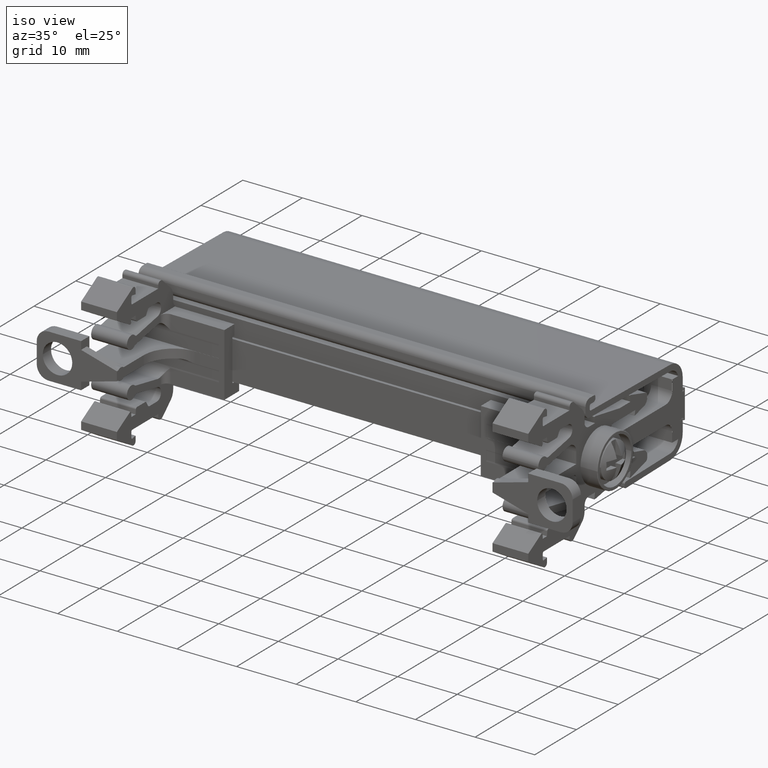
[diagram: clean part render]
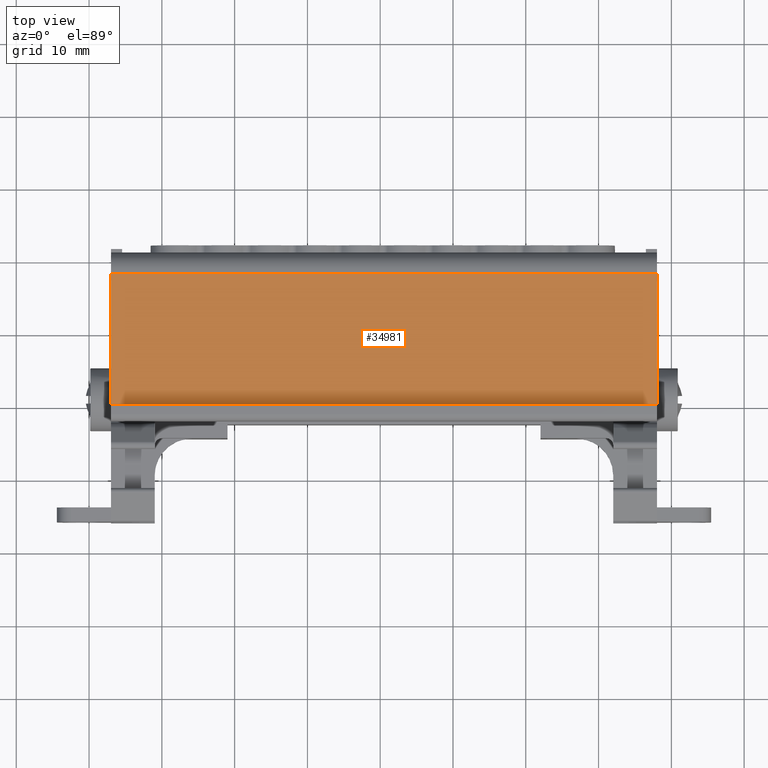
[diagram: tour spotlight — one face highlighted and labeled with its STEP entity id]
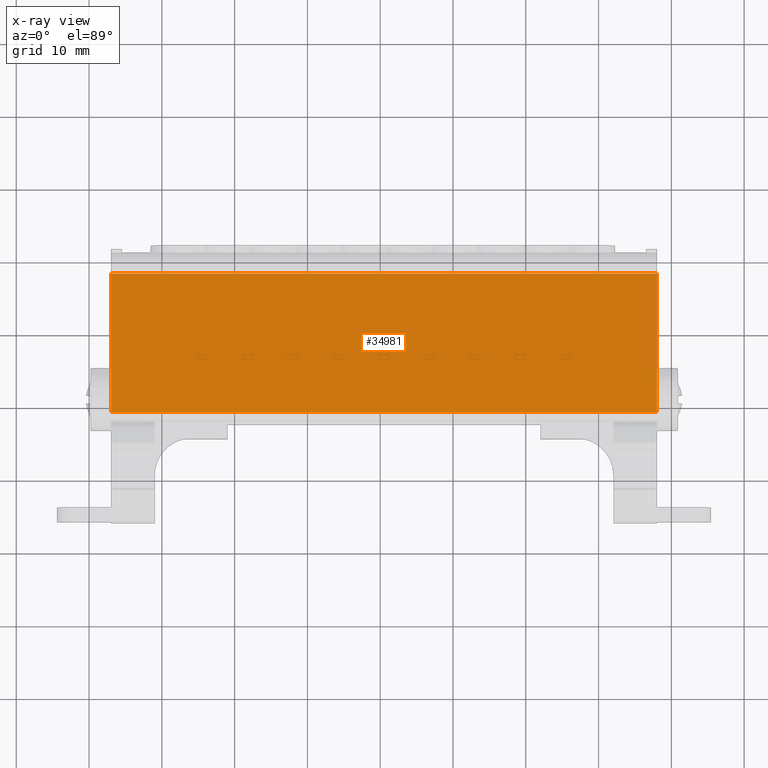
[diagram: x-ray of the same camera — body ghosted, this tour face saturated]
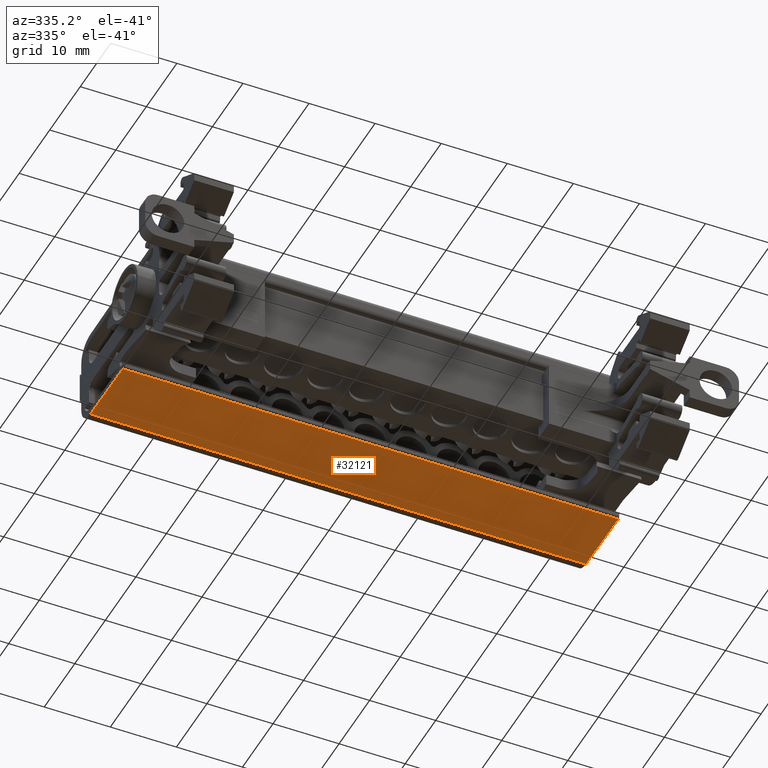
[diagram: tour spotlight — one face highlighted and labeled with its STEP entity id]
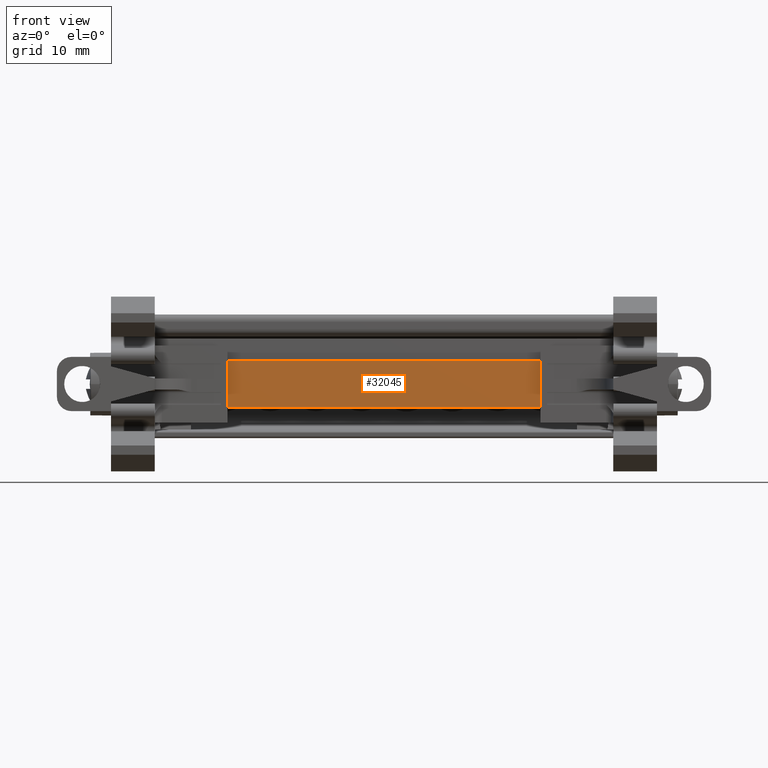
[diagram: tour spotlight — one face highlighted and labeled with its STEP entity id]
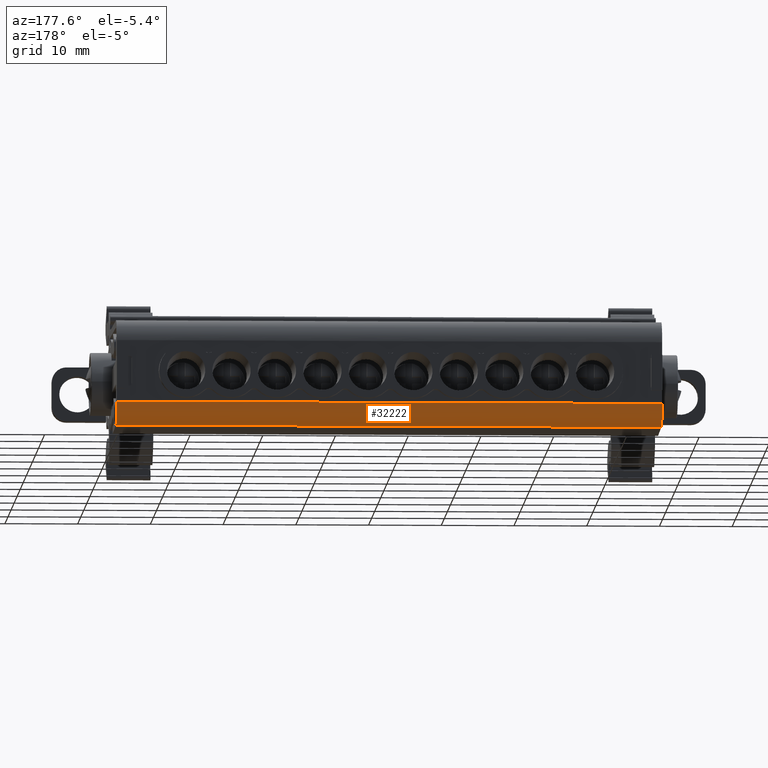
[diagram: tour spotlight — one face highlighted and labeled with its STEP entity id]
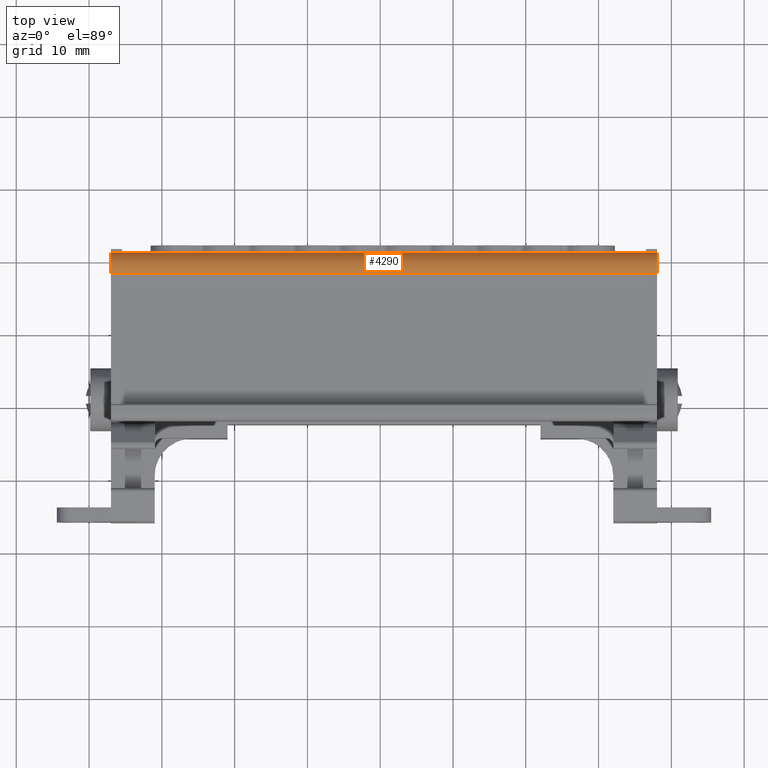
[diagram: tour spotlight — one face highlighted and labeled with its STEP entity id]
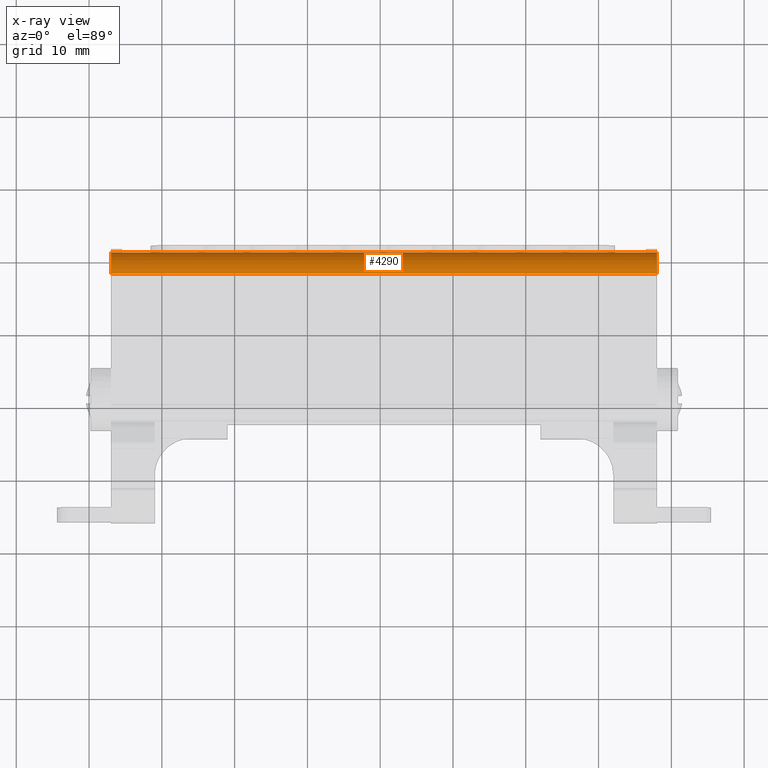
[diagram: x-ray of the same camera — body ghosted, this tour face saturated]
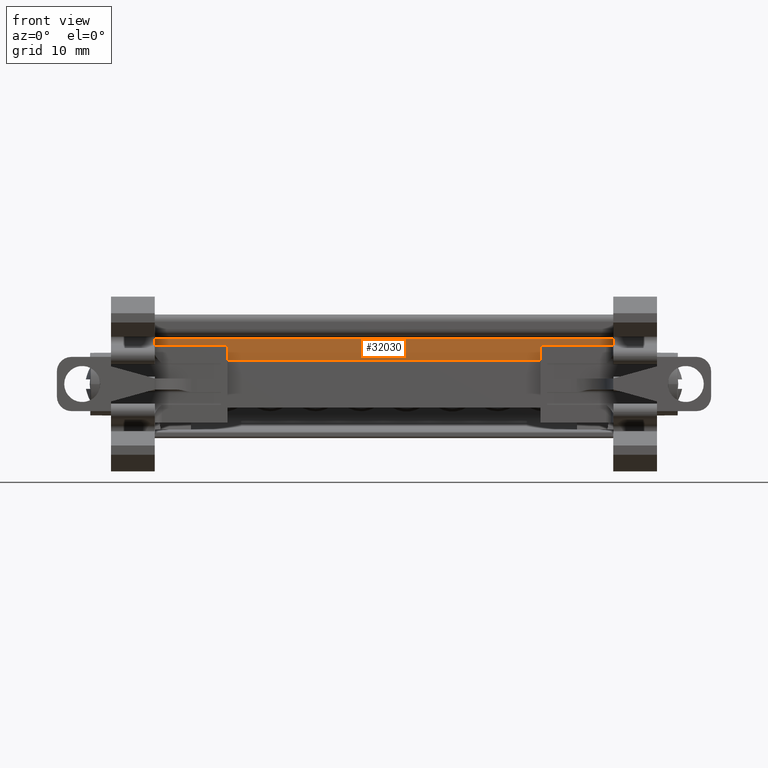
[diagram: tour spotlight — one face highlighted and labeled with its STEP entity id]
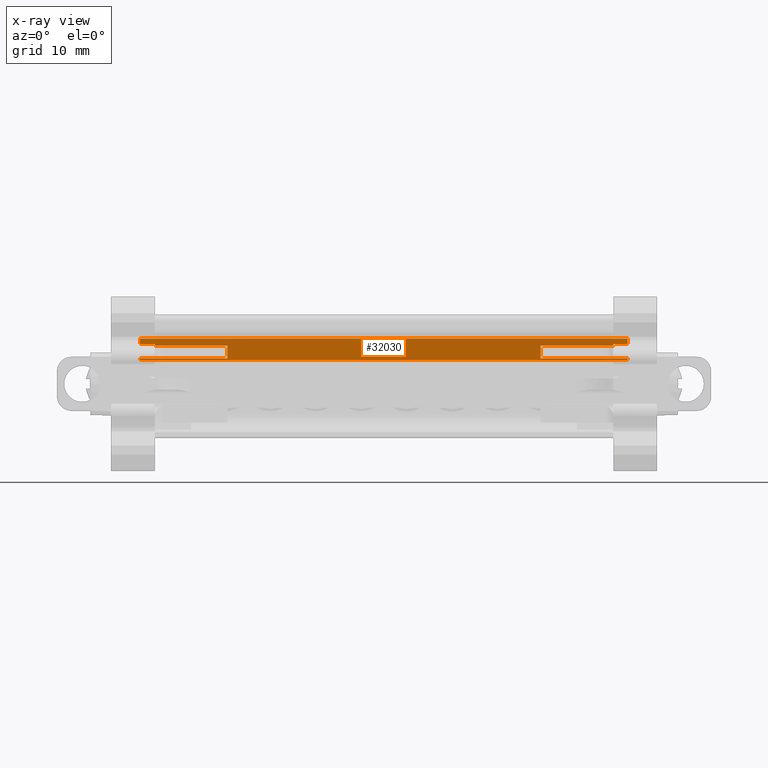
[diagram: x-ray of the same camera — body ghosted, this tour face saturated]
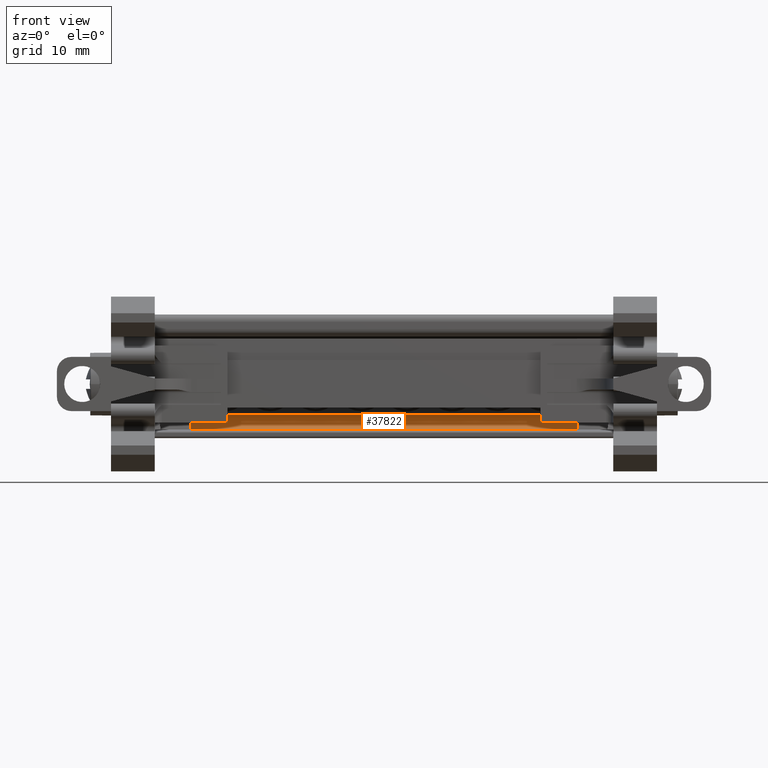
[diagram: tour spotlight — one face highlighted and labeled with its STEP entity id]
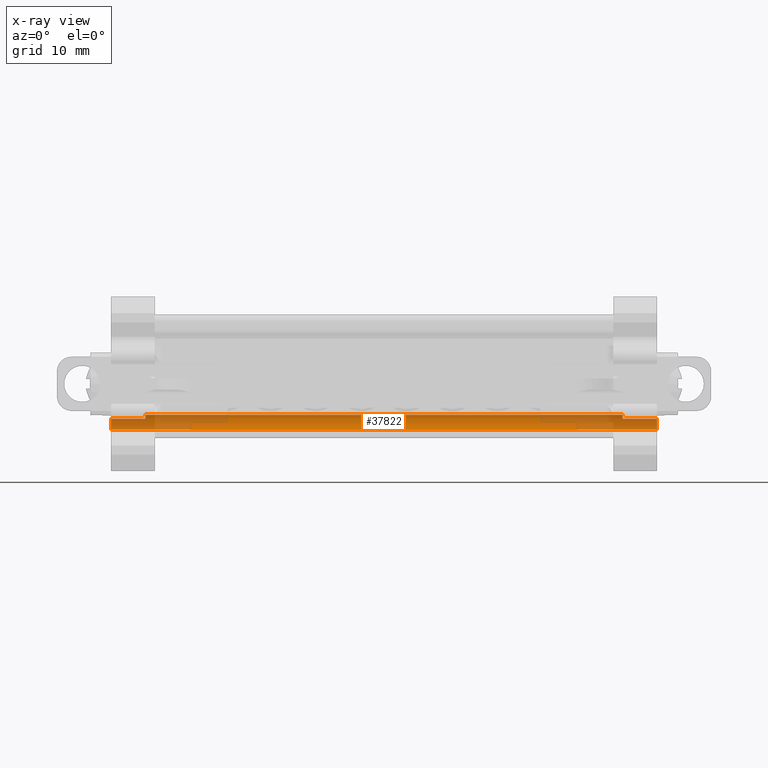
[diagram: x-ray of the same camera — body ghosted, this tour face saturated]
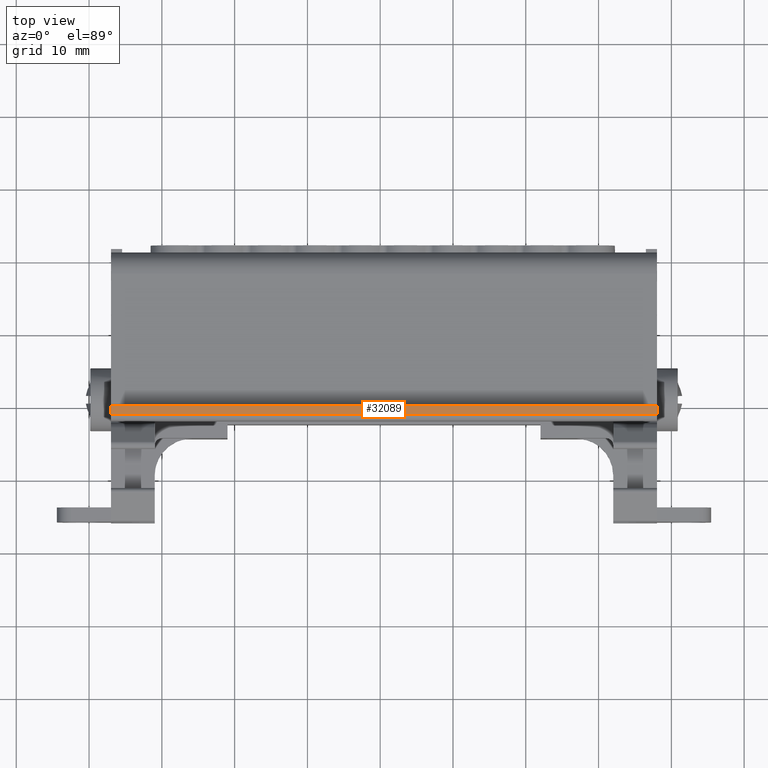
[diagram: tour spotlight — one face highlighted and labeled with its STEP entity id]
A machine part: a face-by-face anatomy tour. The part has 920 B-rep faces; the first image is the clean iso view, then the 8 largest visible faces are spotlighted one at a time (largest first), each with its STEP entity span.

Face 1 — top view, entity #34981. An x-ray twin of the same camera follows (body ghosted, this face saturated) — the face is partly hidden behind the body. In plain terms, the highlighted planar face has unit normal (0, 0.0175, 0.9998).
Definition (entity closure, byte-faithful):
#623 = VECTOR ( 'NONE', #35314, 1000.000000000000000 ) ;
#689 = VECTOR ( 'NONE', #34404, 1000.000000000000000 ) ;
#694 = VECTOR ( 'NONE', #34178, 1000.000000000000100 ) ;
#727 = VECTOR ( 'NONE', #34261, 1000.000000000000100 ) ;
#3236 = EDGE_LOOP ( 'NONE', ( #20037, #20084, #20043, #20111 ) ) ;
#4009 = EDGE_CURVE ( 'NONE', #12497, #12487, #35308, .T. ) ;
#4118 = EDGE_CURVE ( 'NONE', #12487, #12509, #34121, .T. ) ;
#4140 = EDGE_CURVE ( 'NONE', #12464, #12497, #34303, .T. ) ;
#4157 = EDGE_CURVE ( 'NONE', #12464, #12509, #34379, .T. ) ;
#5052 = CARTESIAN_POINT ( 'NONE',  ( -266.9752350520586800, -101.8332255118255700, 148.1638574566935900 ) ) ;
#5113 = CARTESIAN_POINT ( 'NONE',  ( -191.9827637199362000, -120.8545351552616000, 148.4958756516089700 ) ) ;
#5130 = CARTESIAN_POINT ( 'NONE',  ( -191.9827637199364300, -101.8332255118247600, 148.1638574566932500 ) ) ;
#5163 = CARTESIAN_POINT ( 'NONE',  ( -266.9752350520578800, -120.8545351552616000, 148.4958756516092500 ) ) ;
#11979 = AXIS2_PLACEMENT_3D ( 'NONE', #33154, #33187, #33189 ) ;
#12464 = VERTEX_POINT ( 'NONE', #5052 ) ;
#12487 = VERTEX_POINT ( 'NONE', #5113 ) ;
#12497 = VERTEX_POINT ( 'NONE', #5163 ) ;
#12509 = VERTEX_POINT ( 'NONE', #5130 ) ;
#20037 = ORIENTED_EDGE ( 'NONE', *, *, #4009, .T. ) ;
#20043 = ORIENTED_EDGE ( 'NONE', *, *, #4157, .F. ) ;
#20084 = ORIENTED_EDGE ( 'NONE', *, *, #4118, .T. ) ;
#20111 = ORIENTED_EDGE ( 'NONE', *, *, #4140, .T. ) ;
#33154 = CARTESIAN_POINT ( 'NONE',  ( -116.7027637199362600, -120.8545351552598500, 148.4958756516086000 ) ) ;
#33161 = FACE_OUTER_BOUND ( 'NONE', #3236, .T. ) ;
#33166 = PLANE ( 'NONE',  #11979 ) ;
#33187 = DIRECTION ( 'NONE',  ( 4.323107943561772200E-015, 0.01745240644081052700, 0.9998476951563296500 ) ) ;
#33189 = DIRECTION ( 'NONE',  ( 0.0000000000000000000, -0.9998476951563296500, 0.01745240644081052700 ) ) ;
#34121 = LINE ( 'NONE', #34165, #694 ) ;
#34165 = CARTESIAN_POINT ( 'NONE',  ( -191.9827637199362000, -121.3691348875701000, 148.5048580233502700 ) ) ;
#34178 = DIRECTION ( 'NONE',  ( -1.107781261739289600E-014, 0.9998476951563296500, -0.01745240644081052700 ) ) ;
#34261 = DIRECTION ( 'NONE',  ( 4.291610746086628200E-014, -0.9998476951563296500, 0.01745240644081052700 ) ) ;
#34265 = CARTESIAN_POINT ( 'NONE',  ( -266.9752350520578300, -121.3691348875721000, 148.5048580233506100 ) ) ;
#34303 = LINE ( 'NONE', #34265, #727 ) ;
#34379 = LINE ( 'NONE', #34397, #689 ) ;
#34397 = CARTESIAN_POINT ( 'NONE',  ( -116.7027637199362600, -101.8332255118239300, 148.1638574566929100 ) ) ;
#34404 = DIRECTION ( 'NONE',  ( 1.000000000000000000, 1.100161628464494200E-014, -4.515800400741819200E-015 ) ) ;
#34981 = ADVANCED_FACE ( 'NONE', ( #33161 ), #33166, .T. ) ;
#35304 = CARTESIAN_POINT ( 'NONE',  ( -116.7027637199362600, -120.8545351552616000, 148.4958756516086300 ) ) ;
#35308 = LINE ( 'NONE', #35304, #623 ) ;
#35314 = DIRECTION ( 'NONE',  ( 1.000000000000000000, -7.544863691853662700E-017, -4.322449513282258500E-015 ) ) ;

Face 2 — auxiliary view, entity #32121. In plain terms, the highlighted planar face has unit normal (-0, 0.0175, -0.9998).
Definition (entity closure, byte-faithful):
#226 = VECTOR ( 'NONE', #22178, 1000.000000000000000 ) ;
#565 = VECTOR ( 'NONE', #15334, 1000.000000000000100 ) ;
#572 = VECTOR ( 'NONE', #14840, 1000.000000000000000 ) ;
#578 = VECTOR ( 'NONE', #15154, 1000.000000000000100 ) ;
#3288 = EDGE_LOOP ( 'NONE', ( #39016, #38948, #38969, #39047 ) ) ;
#3732 = EDGE_CURVE ( 'NONE', #12963, #12993, #14821, .T. ) ;
#3751 = EDGE_CURVE ( 'NONE', #33797, #12993, #15133, .T. ) ;
#3766 = EDGE_CURVE ( 'NONE', #12963, #33746, #15328, .T. ) ;
#12963 = VERTEX_POINT ( 'NONE', #15859 ) ;
#12993 = VERTEX_POINT ( 'NONE', #15856 ) ;
#13880 = EDGE_CURVE ( 'NONE', #33746, #33797, #22169, .T. ) ;
#14821 = LINE ( 'NONE', #14823, #572 ) ;
#14823 = CARTESIAN_POINT ( 'NONE',  ( -116.7027637199362600, -101.8332255118291800, 133.6898811953547000 ) ) ;
#14840 = DIRECTION ( 'NONE',  ( -1.000000000000000000, -1.100161628464494200E-014, 4.515800400741819200E-015 ) ) ;
#15133 = LINE ( 'NONE', #15231, #578 ) ;
#15154 = DIRECTION ( 'NONE',  ( -4.324610152149537100E-014, 0.9998476951563911600, 0.01745240643728322000 ) ) ;
#15231 = CARTESIAN_POINT ( 'NONE',  ( -266.9752350520577100, -121.1504238520355300, 133.3526982440945400 ) ) ;
#15328 = LINE ( 'NONE', #15331, #565 ) ;
#15331 = CARTESIAN_POINT ( 'NONE',  ( -191.9827637199362600, -121.1504238520335300, 133.3526982440942300 ) ) ;
#15334 = DIRECTION ( 'NONE',  ( 1.092005023200045500E-014, -0.9998476951563911600, -0.01745240643728322000 ) ) ;
#15856 = CARTESIAN_POINT ( 'NONE',  ( -266.9752350520585700, -101.8332255118308500, 133.6898811953553500 ) ) ;
#15859 = CARTESIAN_POINT ( 'NONE',  ( -191.9827637199364900, -101.8332255118300200, 133.6898811953550100 ) ) ;
#21470 = CARTESIAN_POINT ( 'NONE',  ( -191.9827637199363400, -112.4655957814313000, 133.5042924819570100 ) ) ;
#21496 = CARTESIAN_POINT ( 'NONE',  ( -266.9752350520581100, -112.4655957814313200, 133.5042924819573200 ) ) ;
#22169 = LINE ( 'NONE', #22176, #226 ) ;
#22176 = CARTESIAN_POINT ( 'NONE',  ( -116.7027637199364300, -112.4655957814313000, 133.5042924819566400 ) ) ;
#22178 = DIRECTION ( 'NONE',  ( -1.000000000000000000, -8.215052429085175700E-017, 4.706400384569745800E-015 ) ) ;
#29927 = AXIS2_PLACEMENT_3D ( 'NONE', #37247, #37219, #37299 ) ;
#32121 = ADVANCED_FACE ( 'NONE', ( #37105 ), #37271, .T. ) ;
#33746 = VERTEX_POINT ( 'NONE', #21470 ) ;
#33797 = VERTEX_POINT ( 'NONE', #21496 ) ;
#37105 = FACE_OUTER_BOUND ( 'NONE', #3288, .T. ) ;
#37219 = DIRECTION ( 'NONE',  ( -4.707117301334174000E-015, 0.01745240643728322400, -0.9998476951563912700 ) ) ;
#37247 = CARTESIAN_POINT ( 'NONE',  ( -116.7027637199364300, -112.4655957814265300, 133.5042924819567200 ) ) ;
#37271 = PLANE ( 'NONE',  #29927 ) ;
#37299 = DIRECTION ( 'NONE',  ( 0.0000000000000000000, 0.9998476951563911600, 0.01745240643728322000 ) ) ;
#38948 = ORIENTED_EDGE ( 'NONE', *, *, #3766, .T. ) ;
#38969 = ORIENTED_EDGE ( 'NONE', *, *, #13880, .T. ) ;
#39016 = ORIENTED_EDGE ( 'NONE', *, *, #3732, .F. ) ;
#39047 = ORIENTED_EDGE ( 'NONE', *, *, #3751, .T. ) ;

Face 3 — front view, entity #32045. In plain terms, the highlighted planar face has unit normal (-0, 1, 0).
Definition (entity closure, byte-faithful):
#66 = VECTOR ( 'NONE', #16134, 1000.000000000000000 ) ;
#85 = VECTOR ( 'NONE', #16232, 1000.000000000000000 ) ;
#1553 = VECTOR ( 'NONE', #25283, 1000.000000000000000 ) ;
#1665 = VECTOR ( 'NONE', #23834, 1000.000000000000000 ) ;
#2820 = EDGE_LOOP ( 'NONE', ( #6195, #6220, #6219, #6217 ) ) ;
#6195 = ORIENTED_EDGE ( 'NONE', *, *, #41159, .F. ) ;
#6217 = ORIENTED_EDGE ( 'NONE', *, *, #13750, .T. ) ;
#6219 = ORIENTED_EDGE ( 'NONE', *, *, #41077, .F. ) ;
#6220 = ORIENTED_EDGE ( 'NONE', *, *, #13736, .F. ) ;
#13736 = EDGE_CURVE ( 'NONE', #33600, #33584, #16084, .T. ) ;
#13750 = EDGE_CURVE ( 'NONE', #33619, #33612, #16259, .T. ) ;
#16084 = LINE ( 'NONE', #16087, #66 ) ;
#16087 = CARTESIAN_POINT ( 'NONE',  ( -263.5094392833572100, -122.4953568934738500, 137.6765447534685300 ) ) ;
#16134 = DIRECTION ( 'NONE',  ( -1.000000000000000000, 0.0000000000000000000, -2.352285033424550400E-015 ) ) ;
#16232 = DIRECTION ( 'NONE',  ( -1.000000000000000000, 0.0000000000000000000, -2.352285033424550400E-015 ) ) ;
#16251 = CARTESIAN_POINT ( 'NONE',  ( -263.5094392833572100, -122.4953568934738500, 144.1765447534685100 ) ) ;
#16259 = LINE ( 'NONE', #16251, #85 ) ;
#21311 = CARTESIAN_POINT ( 'NONE',  ( -207.9794392833568400, -122.4953568934738500, 137.6765447534686200 ) ) ;
#21323 = CARTESIAN_POINT ( 'NONE',  ( -250.9794392833576400, -122.4953568934742700, 137.6765447534685900 ) ) ;
#21344 = CARTESIAN_POINT ( 'NONE',  ( -250.9794392833576400, -122.4953568934742100, 144.1765447534686500 ) ) ;
#21354 = CARTESIAN_POINT ( 'NONE',  ( -207.9794392833568700, -122.4953568934738500, 144.1765447534686500 ) ) ;
#23834 = DIRECTION ( 'NONE',  ( 0.0000000000000000000, 0.0000000000000000000, 1.000000000000000000 ) ) ;
#23843 = LINE ( 'NONE', #23864, #1665 ) ;
#23864 = CARTESIAN_POINT ( 'NONE',  ( -250.9794392833576400, -122.4953568934743400, 144.1765447534685100 ) ) ;
#25283 = DIRECTION ( 'NONE',  ( -0.0000000000000000000, -0.0000000000000000000, -1.000000000000000000 ) ) ;
#25351 = LINE ( 'NONE', #25361, #1553 ) ;
#25361 = CARTESIAN_POINT ( 'NONE',  ( -207.9794392833568700, -122.4953568934738700, 144.1765447534685100 ) ) ;
#29843 = AXIS2_PLACEMENT_3D ( 'NONE', #40364, #40376, #40350 ) ;
#32045 = ADVANCED_FACE ( 'NONE', ( #40355 ), #40361, .F. ) ;
#33584 = VERTEX_POINT ( 'NONE', #21323 ) ;
#33600 = VERTEX_POINT ( 'NONE', #21311 ) ;
#33612 = VERTEX_POINT ( 'NONE', #21344 ) ;
#33619 = VERTEX_POINT ( 'NONE', #21354 ) ;
#40350 = DIRECTION ( 'NONE',  ( -1.000000000000000000, -1.100161628464490100E-014, 0.0000000000000000000 ) ) ;
#40355 = FACE_OUTER_BOUND ( 'NONE', #2820, .T. ) ;
#40361 = PLANE ( 'NONE',  #29843 ) ;
#40364 = CARTESIAN_POINT ( 'NONE',  ( -263.5094392833572100, -122.4953568934744800, 144.1765447534685100 ) ) ;
#40376 = DIRECTION ( 'NONE',  ( -1.100161628464490100E-014, 1.000000000000000000, 0.0000000000000000000 ) ) ;
#41077 = EDGE_CURVE ( 'NONE', #33619, #33600, #25351, .T. ) ;
#41159 = EDGE_CURVE ( 'NONE', #33584, #33612, #23843, .T. ) ;

Face 4 — auxiliary view, entity #32222. In plain terms, the highlighted cylindrical surface (edge-blend (fillet) strip) has radius 3.0101 mm, axis along (-1, -0, 0).
Definition (entity closure, byte-faithful):
#572 = VECTOR ( 'NONE', #14840, 1000.000000000000000 ) ;
#583 = VECTOR ( 'NONE', #11730, 1000.000000000000000 ) ;
#614 = AXIS2_PLACEMENT_3D ( 'NONE', #35347, #35374, #35379 ) ;
#667 = AXIS2_PLACEMENT_3D ( 'NONE', #35329, #35332, #35335 ) ;
#671 = CIRCLE ( 'NONE', #614, 3.010083036540323100 ) ;
#676 = CIRCLE ( 'NONE', #667, 3.010083036540323100 ) ;
#3128 = EDGE_LOOP ( 'NONE', ( #39236, #39237, #39260, #39198 ) ) ;
#3732 = EDGE_CURVE ( 'NONE', #12963, #12993, #14821, .T. ) ;
#3859 = EDGE_CURVE ( 'NONE', #12450, #12512, #11732, .T. ) ;
#4020 = EDGE_CURVE ( 'NONE', #12993, #12512, #676, .T. ) ;
#4038 = EDGE_CURVE ( 'NONE', #12450, #12963, #671, .T. ) ;
#5105 = CARTESIAN_POINT ( 'NONE',  ( -191.9827637199364900, -98.87567566785203600, 136.6995057816686800 ) ) ;
#5133 = CARTESIAN_POINT ( 'NONE',  ( -266.9752350520586800, -98.87567566785284600, 136.6995057816686800 ) ) ;
#11722 = CARTESIAN_POINT ( 'NONE',  ( -116.7027637199363400, -98.87567566785119800, 136.6995057816686800 ) ) ;
#11730 = DIRECTION ( 'NONE',  ( -1.000000000000000000, -1.100060687039804000E-014, 0.0000000000000000000 ) ) ;
#11732 = LINE ( 'NONE', #11722, #583 ) ;
#12450 = VERTEX_POINT ( 'NONE', #5105 ) ;
#12512 = VERTEX_POINT ( 'NONE', #5133 ) ;
#12963 = VERTEX_POINT ( 'NONE', #15859 ) ;
#12993 = VERTEX_POINT ( 'NONE', #15856 ) ;
#14821 = LINE ( 'NONE', #14823, #572 ) ;
#14823 = CARTESIAN_POINT ( 'NONE',  ( -116.7027637199362600, -101.8332255118291800, 133.6898811953547000 ) ) ;
#14840 = DIRECTION ( 'NONE',  ( -1.000000000000000000, -1.100161628464494200E-014, 4.515800400741819200E-015 ) ) ;
#15856 = CARTESIAN_POINT ( 'NONE',  ( -266.9752350520585700, -101.8332255118308500, 133.6898811953553500 ) ) ;
#15859 = CARTESIAN_POINT ( 'NONE',  ( -191.9827637199364900, -101.8332255118300200, 133.6898811953550100 ) ) ;
#21193 = FACE_OUTER_BOUND ( 'NONE', #3128, .T. ) ;
#21194 = CYLINDRICAL_SURFACE ( 'NONE', #29678, 3.010083036540323100 ) ;
#21195 = CARTESIAN_POINT ( 'NONE',  ( -116.7027637199362600, -101.8857587043914900, 136.6995057816689000 ) ) ;
#21199 = DIRECTION ( 'NONE',  ( -1.000000000000000000, -1.100161628464494200E-014, 4.515800400741819200E-015 ) ) ;
#21200 = DIRECTION ( 'NONE',  ( 9.220867091935821300E-015, -1.000000000000000000, 0.0000000000000000000 ) ) ;
#29678 = AXIS2_PLACEMENT_3D ( 'NONE', #21195, #21199, #21200 ) ;
#32222 = ADVANCED_FACE ( 'NONE', ( #21193 ), #21194, .T. ) ;
#35329 = CARTESIAN_POINT ( 'NONE',  ( -266.9752350520585700, -101.8857587043931500, 136.6995057816695600 ) ) ;
#35332 = DIRECTION ( 'NONE',  ( 1.000000000000000000, 4.308766695157535600E-014, 9.454113442147763200E-015 ) ) ;
#35335 = DIRECTION ( 'NONE',  ( -3.688346836774328500E-014, 1.000000000000000000, 0.0000000000000000000 ) ) ;
#35347 = CARTESIAN_POINT ( 'NONE',  ( -191.9827637199364600, -101.8857587043923300, 136.6995057816692200 ) ) ;
#35374 = DIRECTION ( 'NONE',  ( -1.000000000000000000, -1.100060687039804000E-014, 4.519788888257536600E-015 ) ) ;
#35379 = DIRECTION ( 'NONE',  ( 9.220867091935821300E-015, -1.000000000000000000, 0.0000000000000000000 ) ) ;
#39198 = ORIENTED_EDGE ( 'NONE', *, *, #4020, .T. ) ;
#39236 = ORIENTED_EDGE ( 'NONE', *, *, #3859, .F. ) ;
#39237 = ORIENTED_EDGE ( 'NONE', *, *, #4038, .T. ) ;
#39260 = ORIENTED_EDGE ( 'NONE', *, *, #3732, .T. ) ;

Face 5 — top view, entity #4290. An x-ray twin of the same camera follows (body ghosted, this face saturated) — the face is partly hidden behind the body. In plain terms, the highlighted cylindrical surface (edge-blend (fillet) strip) has radius 3.0101 mm, axis along (-1, -0, 0).
Definition (entity closure, byte-faithful):
#682 = AXIS2_PLACEMENT_3D ( 'NONE', #34226, #34242, #34245 ) ;
#689 = VECTOR ( 'NONE', #34404, 1000.000000000000000 ) ;
#712 = CIRCLE ( 'NONE', #729, 3.010083036540351000 ) ;
#721 = CIRCLE ( 'NONE', #682, 3.010083036540351000 ) ;
#729 = AXIS2_PLACEMENT_3D ( 'NONE', #34106, #34128, #34130 ) ;
#761 = AXIS2_PLACEMENT_3D ( 'NONE', #30847, #30853, #30863 ) ;
#790 = VECTOR ( 'NONE', #34539, 1000.000000000000000 ) ;
#3339 = EDGE_LOOP ( 'NONE', ( #20065, #20071, #20046, #20041 ) ) ;
#4114 = EDGE_CURVE ( 'NONE', #33588, #12464, #712, .T. ) ;
#4128 = EDGE_CURVE ( 'NONE', #12509, #12594, #721, .T. ) ;
#4157 = EDGE_CURVE ( 'NONE', #12464, #12509, #34379, .T. ) ;
#4186 = EDGE_CURVE ( 'NONE', #33588, #12594, #34564, .T. ) ;
#4290 = ADVANCED_FACE ( 'NONE', ( #30860 ), #30861, .T. ) ;
#5052 = CARTESIAN_POINT ( 'NONE',  ( -266.9752350520586800, -101.8332255118255700, 148.1638574566935900 ) ) ;
#5130 = CARTESIAN_POINT ( 'NONE',  ( -191.9827637199364300, -101.8332255118247600, 148.1638574566932500 ) ) ;
#12464 = VERTEX_POINT ( 'NONE', #5052 ) ;
#12509 = VERTEX_POINT ( 'NONE', #5130 ) ;
#12594 = VERTEX_POINT ( 'NONE', #16395 ) ;
#16395 = CARTESIAN_POINT ( 'NONE',  ( -191.9827637199364600, -98.87567566785203600, 145.1542328703783100 ) ) ;
#20041 = ORIENTED_EDGE ( 'NONE', *, *, #4114, .T. ) ;
#20046 = ORIENTED_EDGE ( 'NONE', *, *, #4186, .F. ) ;
#20065 = ORIENTED_EDGE ( 'NONE', *, *, #4157, .T. ) ;
#20071 = ORIENTED_EDGE ( 'NONE', *, *, #4128, .T. ) ;
#21342 = CARTESIAN_POINT ( 'NONE',  ( -266.9752350520587900, -98.87567566785284600, 145.1542328703783100 ) ) ;
#30847 = CARTESIAN_POINT ( 'NONE',  ( -116.7027637199362600, -101.8857587043915500, 145.1542328703787600 ) ) ;
#30853 = DIRECTION ( 'NONE',  ( -1.000000000000000000, -1.100161628464494200E-014, 4.515800400741819200E-015 ) ) ;
#30860 = FACE_OUTER_BOUND ( 'NONE', #3339, .T. ) ;
#30861 = CYLINDRICAL_SURFACE ( 'NONE', #761, 3.010083036540351000 ) ;
#30863 = DIRECTION ( 'NONE',  ( 9.220867091935734500E-015, -1.000000000000000000, 0.0000000000000000000 ) ) ;
#33588 = VERTEX_POINT ( 'NONE', #21342 ) ;
#34106 = CARTESIAN_POINT ( 'NONE',  ( -266.9752350520586800, -101.8857587043932000, 145.1542328703794200 ) ) ;
#34128 = DIRECTION ( 'NONE',  ( 1.000000000000000000, 4.308766695157535600E-014, 9.454113442147763200E-015 ) ) ;
#34130 = DIRECTION ( 'NONE',  ( -3.688346836774293800E-014, 1.000000000000000000, 0.0000000000000000000 ) ) ;
#34226 = CARTESIAN_POINT ( 'NONE',  ( -191.9827637199364300, -101.8857587043923900, 145.1542328703791000 ) ) ;
#34242 = DIRECTION ( 'NONE',  ( -1.000000000000000000, -1.100060687039804000E-014, 4.519788888257536600E-015 ) ) ;
#34245 = DIRECTION ( 'NONE',  ( 9.220867091935734500E-015, -1.000000000000000000, 0.0000000000000000000 ) ) ;
#34379 = LINE ( 'NONE', #34397, #689 ) ;
#34397 = CARTESIAN_POINT ( 'NONE',  ( -116.7027637199362600, -101.8332255118239300, 148.1638574566929100 ) ) ;
#34404 = DIRECTION ( 'NONE',  ( 1.000000000000000000, 1.100161628464494200E-014, -4.515800400741819200E-015 ) ) ;
#34539 = DIRECTION ( 'NONE',  ( 1.000000000000000000, 1.100060687039804000E-014, -0.0000000000000000000 ) ) ;
#34554 = CARTESIAN_POINT ( 'NONE',  ( -116.7027637199363400, -98.87567566785119800, 145.1542328703783100 ) ) ;
#34564 = LINE ( 'NONE', #34554, #790 ) ;

Face 6 — front view, entity #32030. An x-ray twin of the same camera follows (body ghosted, this face saturated) — the face is partly hidden behind the body. In plain terms, the highlighted planar face has unit normal (0, -1, 0).
Definition (entity closure, byte-faithful):
#52 = VECTOR ( 'NONE', #29160, 1000.000000000000000 ) ;
#67 = VECTOR ( 'NONE', #16178, 1000.000000000000000 ) ;
#82 = VECTOR ( 'NONE', #16266, 1000.000000000000000 ) ;
#225 = VECTOR ( 'NONE', #26281, 1000.000000000000000 ) ;
#259 = VECTOR ( 'NONE', #17968, 1000.000000000000000 ) ;
#848 = VECTOR ( 'NONE', #30872, 1000.000000000000000 ) ;
#1545 = VECTOR ( 'NONE', #24935, 1000.000000000000000 ) ;
#1555 = VECTOR ( 'NONE', #24913, 1000.000000000000000 ) ;
#1557 = VECTOR ( 'NONE', #25610, 1000.000000000000000 ) ;
#1564 = VECTOR ( 'NONE', #25533, 1000.000000000000000 ) ;
#1577 = VECTOR ( 'NONE', #25561, 1000.000000000000000 ) ;
#1615 = VECTOR ( 'NONE', #24890, 1000.000000000000000 ) ;
#1623 = VECTOR ( 'NONE', #24875, 1000.000000000000000 ) ;
#1640 = VECTOR ( 'NONE', #25338, 1000.000000000000000 ) ;
#1696 = VECTOR ( 'NONE', #23836, 1000.000000000000000 ) ;
#2825 = EDGE_LOOP ( 'NONE', ( #6231, #6120, #6161, #6137, #6142, #6143, #6160, #6163, #6221, #6215, #6184, #6174, #6199, #6230, #6191, #6232 ) ) ;
#5213 = CARTESIAN_POINT ( 'NONE',  ( -196.0094392833571200, -121.9953568934737000, 147.1765447534686500 ) ) ;
#5216 = CARTESIAN_POINT ( 'NONE',  ( -263.0094392833572100, -121.9953568934744800, 146.4012534115266500 ) ) ;
#5222 = CARTESIAN_POINT ( 'NONE',  ( -196.0094392833571200, -121.9953568934737100, 146.4012534115268200 ) ) ;
#6120 = ORIENTED_EDGE ( 'NONE', *, *, #15723, .F. ) ;
#6137 = ORIENTED_EDGE ( 'NONE', *, *, #7611, .F. ) ;
#6142 = ORIENTED_EDGE ( 'NONE', *, *, #41111, .T. ) ;
#6143 = ORIENTED_EDGE ( 'NONE', *, *, #41099, .T. ) ;
#6160 = ORIENTED_EDGE ( 'NONE', *, *, #41014, .T. ) ;
#6161 = ORIENTED_EDGE ( 'NONE', *, *, #41074, .T. ) ;
#6163 = ORIENTED_EDGE ( 'NONE', *, *, #13937, .T. ) ;
#6174 = ORIENTED_EDGE ( 'NONE', *, *, #41161, .T. ) ;
#6184 = ORIENTED_EDGE ( 'NONE', *, *, #41022, .T. ) ;
#6191 = ORIENTED_EDGE ( 'NONE', *, *, #41010, .T. ) ;
#6199 = ORIENTED_EDGE ( 'NONE', *, *, #41019, .T. ) ;
#6215 = ORIENTED_EDGE ( 'NONE', *, *, #13752, .T. ) ;
#6221 = ORIENTED_EDGE ( 'NONE', *, *, #13745, .T. ) ;
#6230 = ORIENTED_EDGE ( 'NONE', *, *, #34807, .F. ) ;
#6231 = ORIENTED_EDGE ( 'NONE', *, *, #41097, .T. ) ;
#6232 = ORIENTED_EDGE ( 'NONE', *, *, #7505, .F. ) ;
#7505 = EDGE_CURVE ( 'NONE', #8825, #8794, #30654, .T. ) ;
#7611 = EDGE_CURVE ( 'NONE', #19802, #19808, #29171, .T. ) ;
#8794 = VERTEX_POINT ( 'NONE', #5222 ) ;
#8825 = VERTEX_POINT ( 'NONE', #5213 ) ;
#8826 = VERTEX_POINT ( 'NONE', #5216 ) ;
#11030 = CARTESIAN_POINT ( 'NONE',  ( -263.0094392833572100, -121.9953568934743400, 147.1765447534685600 ) ) ;
#11038 = CARTESIAN_POINT ( 'NONE',  ( -260.9794392833572400, -121.9953568934744400, 146.4012534115266500 ) ) ;
#11051 = CARTESIAN_POINT ( 'NONE',  ( -260.9794392833575200, -121.9953568934744100, 146.2347488561999300 ) ) ;
#11908 = VECTOR ( 'NONE', #32658, 1000.000000000000000 ) ;
#12541 = VERTEX_POINT ( 'NONE', #16366 ) ;
#12565 = VERTEX_POINT ( 'NONE', #16380 ) ;
#12586 = VERTEX_POINT ( 'NONE', #16359 ) ;
#12619 = VERTEX_POINT ( 'NONE', #16404 ) ;
#12622 = VERTEX_POINT ( 'NONE', #16409 ) ;
#12627 = VERTEX_POINT ( 'NONE', #15797 ) ;
#12658 = VERTEX_POINT ( 'NONE', #15806 ) ;
#12676 = VERTEX_POINT ( 'NONE', #15793 ) ;
#13745 = EDGE_CURVE ( 'NONE', #33686, #33671, #16118, .T. ) ;
#13752 = EDGE_CURVE ( 'NONE', #33671, #12658, #16245, .T. ) ;
#13937 = EDGE_CURVE ( 'NONE', #12622, #33686, #26232, .T. ) ;
#15723 = EDGE_CURVE ( 'NONE', #8826, #19836, #17981, .T. ) ;
#15793 = CARTESIAN_POINT ( 'NONE',  ( -250.9794392833576400, -121.9953568934743200, 146.2347488561998700 ) ) ;
#15797 = CARTESIAN_POINT ( 'NONE',  ( -207.9794392833568700, -121.9953568934738500, 144.4379881523248100 ) ) ;
#15806 = CARTESIAN_POINT ( 'NONE',  ( -196.0094392833571200, -121.9953568934737100, 144.4379881523248900 ) ) ;
#16118 = LINE ( 'NONE', #16219, #67 ) ;
#16178 = DIRECTION ( 'NONE',  ( 1.000000000000000000, -0.0000000000000000000, 2.352285033424550400E-015 ) ) ;
#16219 = CARTESIAN_POINT ( 'NONE',  ( -263.5094392833572100, -121.9953568934744800, 144.1765447534685100 ) ) ;
#16245 = LINE ( 'NONE', #16272, #82 ) ;
#16266 = DIRECTION ( 'NONE',  ( -4.827093892403312000E-045, 4.315653283236645400E-031, 1.000000000000000000 ) ) ;
#16272 = CARTESIAN_POINT ( 'NONE',  ( -196.0094392833571200, -121.9953568934737100, 147.1765447534686500 ) ) ;
#16359 = CARTESIAN_POINT ( 'NONE',  ( -250.9794392833576400, -121.9953568934743200, 144.4379881523246100 ) ) ;
#16366 = CARTESIAN_POINT ( 'NONE',  ( -197.9794392833570700, -121.9953568934737400, 146.2347488561998700 ) ) ;
#16380 = CARTESIAN_POINT ( 'NONE',  ( -197.9794392833571500, -121.9953568934737400, 146.4012534115268200 ) ) ;
#16404 = CARTESIAN_POINT ( 'NONE',  ( -207.9794392833568700, -121.9953568934738300, 146.2347488561998100 ) ) ;
#16409 = CARTESIAN_POINT ( 'NONE',  ( -263.0094392833572100, -121.9953568934744800, 144.4379881523246900 ) ) ;
#17968 = DIRECTION ( 'NONE',  ( -2.352285033424550400E-015, -3.264451255736367600E-029, 1.000000000000000000 ) ) ;
#17978 = CARTESIAN_POINT ( 'NONE',  ( -263.0094392833572100, -121.9953568934744800, 147.1765447534685100 ) ) ;
#17981 = LINE ( 'NONE', #17978, #259 ) ;
#19802 = VERTEX_POINT ( 'NONE', #11051 ) ;
#19808 = VERTEX_POINT ( 'NONE', #11038 ) ;
#19836 = VERTEX_POINT ( 'NONE', #11030 ) ;
#21360 = CARTESIAN_POINT ( 'NONE',  ( -263.0094392833572100, -121.9953568934744700, 144.1765447534685100 ) ) ;
#21413 = CARTESIAN_POINT ( 'NONE',  ( -196.0094392833571200, -121.9953568934739100, 144.1765447534686500 ) ) ;
#23836 = DIRECTION ( 'NONE',  ( -4.827093892403312000E-045, 4.315653283236645400E-031, 1.000000000000000000 ) ) ;
#23863 = LINE ( 'NONE', #23879, #1696 ) ;
#23879 = CARTESIAN_POINT ( 'NONE',  ( -207.9794392833568700, -121.9953568934738500, 147.1765447534686500 ) ) ;
#24869 = LINE ( 'NONE', #24918, #1623 ) ;
#24875 = DIRECTION ( 'NONE',  ( 1.000000000000000000, 1.118508271077582400E-014, 0.0000000000000000000 ) ) ;
#24882 = CARTESIAN_POINT ( 'NONE',  ( -196.0094392833571200, -121.9953568934737100, 146.4012534115268200 ) ) ;
#24888 = CARTESIAN_POINT ( 'NONE',  ( -196.0094392833571200, -121.9953568934737100, 144.4379881523246100 ) ) ;
#24890 = DIRECTION ( 'NONE',  ( -1.000000000000000000, -1.118508271077582400E-014, -0.0000000000000000000 ) ) ;
#24894 = CARTESIAN_POINT ( 'NONE',  ( -196.0094392833571200, -121.9953568934737100, 144.4379881523248900 ) ) ;
#24913 = DIRECTION ( 'NONE',  ( 1.000000000000000000, 1.118508271077582400E-014, 0.0000000000000000000 ) ) ;
#24916 = LINE ( 'NONE', #24888, #1615 ) ;
#24918 = CARTESIAN_POINT ( 'NONE',  ( -196.0094392833571200, -121.9953568934737100, 146.2347488561997600 ) ) ;
#24935 = DIRECTION ( 'NONE',  ( -1.000000000000000000, -1.118508271077582400E-014, -0.0000000000000000000 ) ) ;
#24942 = LINE ( 'NONE', #24894, #1545 ) ;
#24953 = LINE ( 'NONE', #24882, #1555 ) ;
#25338 = DIRECTION ( 'NONE',  ( 1.000000000000000000, 1.118508271077582400E-014, 0.0000000000000000000 ) ) ;
#25419 = CARTESIAN_POINT ( 'NONE',  ( -196.0094392833571200, -121.9953568934737100, 146.4012534115266500 ) ) ;
#25422 = LINE ( 'NONE', #25419, #1640 ) ;
#25446 = CARTESIAN_POINT ( 'NONE',  ( -196.0094392833571200, -121.9953568934737100, 147.1765447534686500 ) ) ;
#25471 = CARTESIAN_POINT ( 'NONE',  ( -250.9794392833576400, -121.9953568934743200, 147.1765447534686500 ) ) ;
#25485 = LINE ( 'NONE', #25446, #1577 ) ;
#25530 = CARTESIAN_POINT ( 'NONE',  ( -196.0094392833571200, -121.9953568934737100, 146.2347488561999300 ) ) ;
#25533 = DIRECTION ( 'NONE',  ( 1.000000000000000000, 1.118508271077582400E-014, 0.0000000000000000000 ) ) ;
#25561 = DIRECTION ( 'NONE',  ( -1.000000000000000000, -1.118508271077582400E-014, -0.0000000000000000000 ) ) ;
#25564 = LINE ( 'NONE', #25471, #1557 ) ;
#25610 = DIRECTION ( 'NONE',  ( 4.827093892403312000E-045, -4.315653283236645400E-031, -1.000000000000000000 ) ) ;
#25621 = LINE ( 'NONE', #25530, #1564 ) ;
#26228 = CARTESIAN_POINT ( 'NONE',  ( -263.0094392833572100, -121.9953568934744700, 147.1765447534686500 ) ) ;
#26232 = LINE ( 'NONE', #26228, #225 ) ;
#26281 = DIRECTION ( 'NONE',  ( 4.827093892403312000E-045, -4.315653283236645400E-031, -1.000000000000000000 ) ) ;
#29132 = CARTESIAN_POINT ( 'NONE',  ( -260.9794392833572900, -121.9953568934744400, 152.9487504172523700 ) ) ;
#29160 = DIRECTION ( 'NONE',  ( -2.589419078426960400E-015, -5.758264308224470700E-029, 1.000000000000000000 ) ) ;
#29171 = LINE ( 'NONE', #29132, #52 ) ;
#29823 = AXIS2_PLACEMENT_3D ( 'NONE', #40139, #40115, #40105 ) ;
#30654 = LINE ( 'NONE', #30659, #848 ) ;
#30659 = CARTESIAN_POINT ( 'NONE',  ( -196.0094392833571200, -121.9953568934737100, 147.1765447534686500 ) ) ;
#30872 = DIRECTION ( 'NONE',  ( 2.352285033424550400E-015, 3.264451255736367600E-029, -1.000000000000000000 ) ) ;
#32030 = ADVANCED_FACE ( 'NONE', ( #40137 ), #40138, .T. ) ;
#32628 = CARTESIAN_POINT ( 'NONE',  ( -197.9794392833572100, -121.9953568934737400, 152.9487504172525400 ) ) ;
#32638 = LINE ( 'NONE', #32628, #11908 ) ;
#32658 = DIRECTION ( 'NONE',  ( 2.352285033423030300E-015, -0.0000000000000000000, -1.000000000000000000 ) ) ;
#33671 = VERTEX_POINT ( 'NONE', #21413 ) ;
#33686 = VERTEX_POINT ( 'NONE', #21360 ) ;
#34807 = EDGE_CURVE ( 'NONE', #12565, #12541, #32638, .T. ) ;
#40105 = DIRECTION ( 'NONE',  ( 1.000000000000000000, 1.118508271077582400E-014, 0.0000000000000000000 ) ) ;
#40115 = DIRECTION ( 'NONE',  ( 1.118508271077582400E-014, -1.000000000000000000, 4.315653283236645400E-031 ) ) ;
#40137 = FACE_OUTER_BOUND ( 'NONE', #2825, .T. ) ;
#40138 = PLANE ( 'NONE',  #29823 ) ;
#40139 = CARTESIAN_POINT ( 'NONE',  ( -196.0094392833571200, -121.9953568934737100, 147.1765447534686500 ) ) ;
#41010 = EDGE_CURVE ( 'NONE', #12565, #8794, #24953, .T. ) ;
#41014 = EDGE_CURVE ( 'NONE', #12586, #12622, #24916, .T. ) ;
#41019 = EDGE_CURVE ( 'NONE', #12619, #12541, #24869, .T. ) ;
#41022 = EDGE_CURVE ( 'NONE', #12658, #12627, #24942, .T. ) ;
#41074 = EDGE_CURVE ( 'NONE', #8826, #19808, #25422, .T. ) ;
#41097 = EDGE_CURVE ( 'NONE', #8825, #19836, #25485, .T. ) ;
#41099 = EDGE_CURVE ( 'NONE', #12676, #12586, #25564, .T. ) ;
#41111 = EDGE_CURVE ( 'NONE', #19802, #12676, #25621, .T. ) ;
#41161 = EDGE_CURVE ( 'NONE', #12627, #12619, #23863, .T. ) ;

Face 7 — front view, entity #37822. An x-ray twin of the same camera follows (body ghosted, this face saturated) — the face is partly hidden behind the body. In plain terms, the highlighted cylindrical surface (edge-blend (fillet) strip) has radius 2.0067 mm, axis along (1, 0, 0).
Definition (entity closure, byte-faithful):
#486 = VECTOR ( 'NONE', #2767, 1000.000000000000000 ) ;
#558 = VECTOR ( 'NONE', #15177, 1000.000000000000000 ) ;
#584 = CIRCLE ( 'NONE', #587, 2.006722024509993900 ) ;
#587 = AXIS2_PLACEMENT_3D ( 'NONE', #5919, #5339, #5747 ) ;
#611 = AXIS2_PLACEMENT_3D ( 'NONE', #8079, #23259, #23260 ) ;
#612 = CIRCLE ( 'NONE', #611, 2.006722024509993900 ) ;
#758 = VECTOR ( 'NONE', #31732, 1000.000000000000000 ) ;
#1252 = AXIS2_PLACEMENT_3D ( 'NONE', #24679, #24627, #24683 ) ;
#2606 = LINE ( 'NONE', #2704, #486 ) ;
#2704 = CARTESIAN_POINT ( 'NONE',  ( -248.2052350520592900, -99.95439307981305900, 136.1547488562002000 ) ) ;
#2767 = DIRECTION ( 'NONE',  ( 1.000000000000000000, 1.100161628464490700E-014, 9.450124954631040800E-015 ) ) ;
#3205 = EDGE_LOOP ( 'NONE', ( #39147, #39202, #39200, #39286, #39297, #39196, #39201, #39264 ) ) ;
#3636 = EDGE_CURVE ( 'NONE', #33891, #33878, #2606, .T. ) ;
#3753 = EDGE_CURVE ( 'NONE', #12962, #12402, #15220, .T. ) ;
#3876 = EDGE_CURVE ( 'NONE', #33889, #12479, #22577, .T. ) ;
#3880 = EDGE_CURVE ( 'NONE', #12962, #33878, #584, .T. ) ;
#3883 = EDGE_CURVE ( 'NONE', #33925, #12402, #612, .T. ) ;
#3901 = EDGE_CURVE ( 'NONE', #12478, #33891, #22558, .T. ) ;
#3903 = EDGE_CURVE ( 'NONE', #12479, #12478, #22586, .T. ) ;
#4210 = EDGE_CURVE ( 'NONE', #33925, #33889, #31712, .T. ) ;
#5024 = CARTESIAN_POINT ( 'NONE',  ( -266.9752350520585700, -101.8507365760226000, 134.6930893906424800 ) ) ;
#5141 = CARTESIAN_POINT ( 'NONE',  ( -196.6952073091447300, -99.87903667988212000, 136.6995057816657200 ) ) ;
#5161 = CARTESIAN_POINT ( 'NONE',  ( -262.2636712575701900, -99.87903667988280200, 136.6995057816637300 ) ) ;
#5339 = DIRECTION ( 'NONE',  ( 1.000000000000000000, 1.100060687039804000E-014, -4.519788888257536600E-015 ) ) ;
#5747 = DIRECTION ( 'NONE',  ( 1.383130063687138400E-014, -1.000000000000000000, 0.0000000000000000000 ) ) ;
#5919 = CARTESIAN_POINT ( 'NONE',  ( -191.9827637199364600, -101.8857587043920000, 136.6995057816691900 ) ) ;
#8079 = CARTESIAN_POINT ( 'NONE',  ( -266.9752350520585700, -101.8857587043928400, 136.6995057816685100 ) ) ;
#12402 = VERTEX_POINT ( 'NONE', #5024 ) ;
#12478 = VERTEX_POINT ( 'NONE', #5141 ) ;
#12479 = VERTEX_POINT ( 'NONE', #5161 ) ;
#12962 = VERTEX_POINT ( 'NONE', #15841 ) ;
#15151 = CARTESIAN_POINT ( 'NONE',  ( -248.2052350520592400, -101.8507365760224000, 134.6930893906426500 ) ) ;
#15177 = DIRECTION ( 'NONE',  ( -1.000000000000000000, -1.100161628464490700E-014, -9.450124954631040800E-015 ) ) ;
#15220 = LINE ( 'NONE', #15151, #558 ) ;
#15841 = CARTESIAN_POINT ( 'NONE',  ( -191.9827637199364900, -101.8507365760217700, 134.6930893906431700 ) ) ;
#21609 = CARTESIAN_POINT ( 'NONE',  ( -191.9827637199364900, -99.95439307981243400, 136.1547488562007100 ) ) ;
#21613 = CARTESIAN_POINT ( 'NONE',  ( -266.9752350520586800, -99.95439307981325800, 136.1547488562000900 ) ) ;
#21617 = CARTESIAN_POINT ( 'NONE',  ( -196.6952073091447100, -99.95439307981249000, 136.1547488562006000 ) ) ;
#21622 = CARTESIAN_POINT ( 'NONE',  ( -262.2636712575701400, -99.95439307981328600, 136.1547488562001100 ) ) ;
#22558 = B_SPLINE_CURVE_WITH_KNOTS ( 'NONE', 3,
 ( #35597, #35600, #35645, #35735 ),
 .UNSPECIFIED., .F., .F.,
 ( 4, 4 ),
 ( 0.0000000000000000000, 1.000000000000000000 ),
 .UNSPECIFIED. ) ;
#22577 = B_SPLINE_CURVE_WITH_KNOTS ( 'NONE', 3,
 ( #23255, #23261, #23262, #23263 ),
 .UNSPECIFIED., .F., .F.,
 ( 4, 4 ),
 ( 0.0000000000000000000, 1.000000000000000000 ),
 .UNSPECIFIED. ) ;
#22586 = B_SPLINE_CURVE_WITH_KNOTS ( 'NONE', 3,
 ( #35739, #35750, #35713, #35737 ),
 .UNSPECIFIED., .F., .F.,
 ( 4, 4 ),
 ( 0.0000000000000000000, 1.000000000000000000 ),
 .UNSPECIFIED. ) ;
#23255 = CARTESIAN_POINT ( 'NONE',  ( -262.2636712575701400, -99.95439307981328600, 136.1547488562001100 ) ) ;
#23259 = DIRECTION ( 'NONE',  ( -1.000000000000000000, -4.308766695157535600E-014, -9.454113442147763200E-015 ) ) ;
#23260 = DIRECTION ( 'NONE',  ( -5.532520254748553800E-014, 1.000000000000000000, 0.0000000000000000000 ) ) ;
#23261 = CARTESIAN_POINT ( 'NONE',  ( -262.2636712575701900, -99.90444451419200800, 136.3328997885907900 ) ) ;
#23262 = CARTESIAN_POINT ( 'NONE',  ( -262.2636712575701900, -99.87932571421519900, 136.5144854304109600 ) ) ;
#23263 = CARTESIAN_POINT ( 'NONE',  ( -262.2636712575701900, -99.87903667988280200, 136.6995057816637300 ) ) ;
#24625 = FACE_OUTER_BOUND ( 'NONE', #3205, .T. ) ;
#24627 = DIRECTION ( 'NONE',  ( 1.000000000000000000, 1.100161628464490700E-014, 9.450124954631040800E-015 ) ) ;
#24679 = CARTESIAN_POINT ( 'NONE',  ( -248.2052350520592700, -101.8857587043926300, 136.6995057816686800 ) ) ;
#24683 = DIRECTION ( 'NONE',  ( -1.383130063687138400E-014, 1.000000000000000000, 0.0000000000000000000 ) ) ;
#24688 = CYLINDRICAL_SURFACE ( 'NONE', #1252, 2.006722024509993900 ) ;
#31712 = LINE ( 'NONE', #31730, #758 ) ;
#31730 = CARTESIAN_POINT ( 'NONE',  ( -248.2052350520592900, -99.95439307981304500, 136.1547488562002300 ) ) ;
#31732 = DIRECTION ( 'NONE',  ( 1.000000000000000000, 1.100161628464490700E-014, 9.450124954631040800E-015 ) ) ;
#33878 = VERTEX_POINT ( 'NONE', #21609 ) ;
#33889 = VERTEX_POINT ( 'NONE', #21622 ) ;
#33891 = VERTEX_POINT ( 'NONE', #21617 ) ;
#33925 = VERTEX_POINT ( 'NONE', #21613 ) ;
#35597 = CARTESIAN_POINT ( 'NONE',  ( -196.6952073091447300, -99.87903667988212000, 136.6995057816657200 ) ) ;
#35600 = CARTESIAN_POINT ( 'NONE',  ( -196.6952073091447100, -99.87932571421453100, 136.5144854304143400 ) ) ;
#35645 = CARTESIAN_POINT ( 'NONE',  ( -196.6952073091447100, -99.90444451419126900, 136.3328997885915000 ) ) ;
#35713 = CARTESIAN_POINT ( 'NONE',  ( -218.5513619586199100, -99.87903667988233300, 136.6995057816605500 ) ) ;
#35735 = CARTESIAN_POINT ( 'NONE',  ( -196.6952073091447100, -99.95439307981249000, 136.1547488562006000 ) ) ;
#35737 = CARTESIAN_POINT ( 'NONE',  ( -196.6952073091447300, -99.87903667988212000, 136.6995057816657200 ) ) ;
#35739 = CARTESIAN_POINT ( 'NONE',  ( -262.2636712575701900, -99.87903667988280200, 136.6995057816637300 ) ) ;
#35750 = CARTESIAN_POINT ( 'NONE',  ( -240.4075166080950500, -99.87903667988258900, 136.6995057816605500 ) ) ;
#37822 = ADVANCED_FACE ( 'NONE', ( #24625 ), #24688, .F. ) ;
#39147 = ORIENTED_EDGE ( 'NONE', *, *, #3901, .F. ) ;
#39196 = ORIENTED_EDGE ( 'NONE', *, *, #3753, .F. ) ;
#39200 = ORIENTED_EDGE ( 'NONE', *, *, #3876, .F. ) ;
#39201 = ORIENTED_EDGE ( 'NONE', *, *, #3880, .T. ) ;
#39202 = ORIENTED_EDGE ( 'NONE', *, *, #3903, .F. ) ;
#39264 = ORIENTED_EDGE ( 'NONE', *, *, #3636, .F. ) ;
#39286 = ORIENTED_EDGE ( 'NONE', *, *, #4210, .F. ) ;
#39297 = ORIENTED_EDGE ( 'NONE', *, *, #3883, .T. ) ;

Face 8 — top view, entity #32089. In plain terms, the highlighted planar face has unit normal (0, 0, 1).
Definition (entity closure, byte-faithful):
#5 = VECTOR ( 'NONE', #36251, 1000.000000000000000 ) ;
#51 = VECTOR ( 'NONE', #28979, 1000.000000000000000 ) ;
#86 = VECTOR ( 'NONE', #22328, 1000.000000000000000 ) ;
#840 = VECTOR ( 'NONE', #36813, 1000.000000000000000 ) ;
#2985 = EDGE_LOOP ( 'NONE', ( #39691, #39684, #39692, #39667 ) ) ;
#7553 = EDGE_CURVE ( 'NONE', #33819, #33706, #36776, .T. ) ;
#7566 = EDGE_CURVE ( 'NONE', #33819, #33801, #36267, .T. ) ;
#7594 = EDGE_CURVE ( 'NONE', #33728, #33801, #28990, .T. ) ;
#13790 = EDGE_CURVE ( 'NONE', #33706, #33728, #22292, .T. ) ;
#21422 = CARTESIAN_POINT ( 'NONE',  ( -191.9827637199362000, -120.0777967197794000, 150.4945631138668900 ) ) ;
#21481 = CARTESIAN_POINT ( 'NONE',  ( -266.9752350520578800, -120.0777967197794000, 150.4945631138672300 ) ) ;
#21515 = CARTESIAN_POINT ( 'NONE',  ( -266.9752350520578300, -121.1502970693745500, 150.4945631138682800 ) ) ;
#21561 = CARTESIAN_POINT ( 'NONE',  ( -191.9827637199361700, -121.1502970693737400, 150.4945631138679400 ) ) ;
#22292 = LINE ( 'NONE', #22334, #86 ) ;
#22328 = DIRECTION ( 'NONE',  ( -1.000000000000000000, -0.0000000000000000000, 4.515800400741819200E-015 ) ) ;
#22334 = CARTESIAN_POINT ( 'NONE',  ( -116.7027637199362600, -120.0777967197794000, 150.4945631138665500 ) ) ;
#28952 = CARTESIAN_POINT ( 'NONE',  ( -266.9752350520578800, -121.3920203361809500, 150.4945631138672300 ) ) ;
#28979 = DIRECTION ( 'NONE',  ( 4.308766695157535600E-014, -1.000000000000000000, -1.256339625808802000E-028 ) ) ;
#28990 = LINE ( 'NONE', #28952, #51 ) ;
#29870 = AXIS2_PLACEMENT_3D ( 'NONE', #38627, #38615, #38637 ) ;
#32089 = ADVANCED_FACE ( 'NONE', ( #38564 ), #38634, .T. ) ;
#33706 = VERTEX_POINT ( 'NONE', #21422 ) ;
#33728 = VERTEX_POINT ( 'NONE', #21481 ) ;
#33801 = VERTEX_POINT ( 'NONE', #21515 ) ;
#33819 = VERTEX_POINT ( 'NONE', #21561 ) ;
#36249 = CARTESIAN_POINT ( 'NONE',  ( -116.7027637199362600, -121.1502970693729000, 150.4945631138676000 ) ) ;
#36251 = DIRECTION ( 'NONE',  ( -1.000000000000000000, -1.100161628464494200E-014, 4.515800400741819200E-015 ) ) ;
#36267 = LINE ( 'NONE', #36249, #5 ) ;
#36776 = LINE ( 'NONE', #36777, #840 ) ;
#36777 = CARTESIAN_POINT ( 'NONE',  ( -191.9827637199361700, -121.3920203361789400, 150.4945631138668900 ) ) ;
#36813 = DIRECTION ( 'NONE',  ( -1.100060687039804000E-014, 1.000000000000000000, -1.926479619232715700E-029 ) ) ;
#38564 = FACE_OUTER_BOUND ( 'NONE', #2985, .T. ) ;
#38615 = DIRECTION ( 'NONE',  ( 4.515800400741819200E-015, 6.894134110607383700E-029, 1.000000000000000000 ) ) ;
#38627 = CARTESIAN_POINT ( 'NONE',  ( -116.7027637199362600, -120.0777967197773500, 150.4945631138665500 ) ) ;
#38634 = PLANE ( 'NONE',  #29870 ) ;
#38637 = DIRECTION ( 'NONE',  ( 1.000000000000000000, 0.0000000000000000000, -4.515800400741819200E-015 ) ) ;
#39667 = ORIENTED_EDGE ( 'NONE', *, *, #7594, .T. ) ;
#39684 = ORIENTED_EDGE ( 'NONE', *, *, #7553, .T. ) ;
#39691 = ORIENTED_EDGE ( 'NONE', *, *, #7566, .F. ) ;
#39692 = ORIENTED_EDGE ( 'NONE', *, *, #13790, .T. ) ;